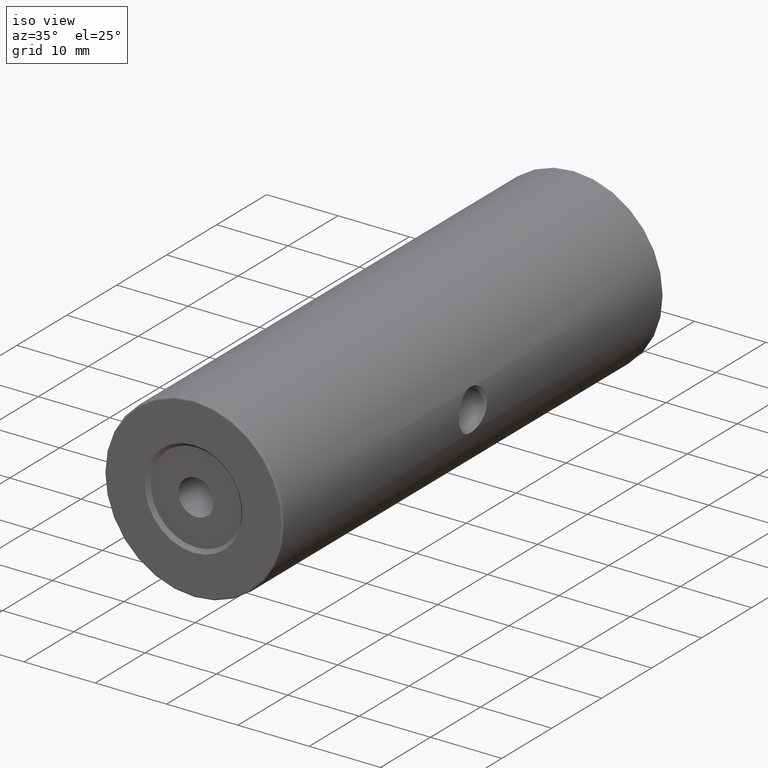
[diagram: clean part render]
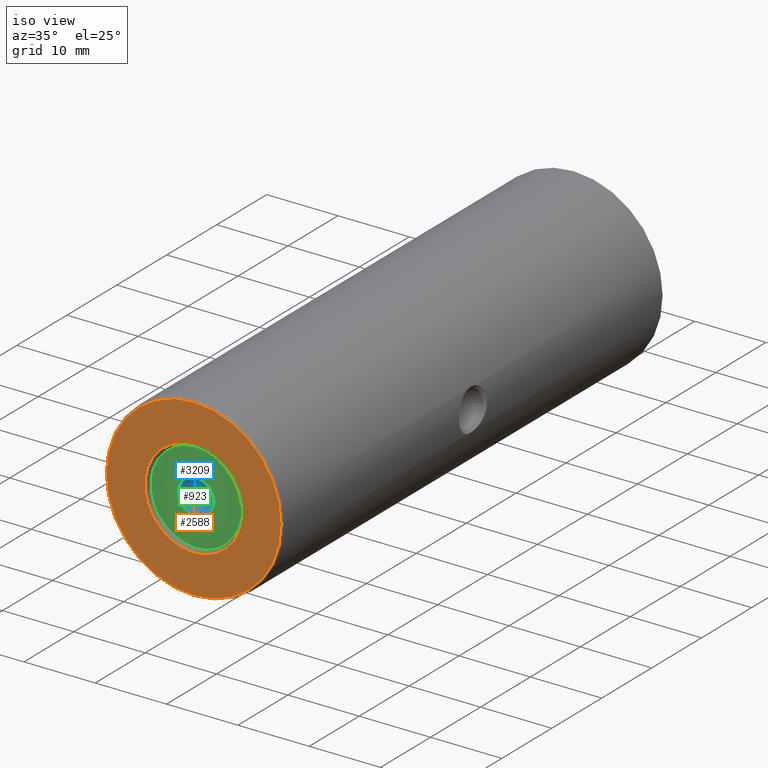
[diagram: same view with three faces highlighted in distinct colors, each labeled with its STEP entity id]
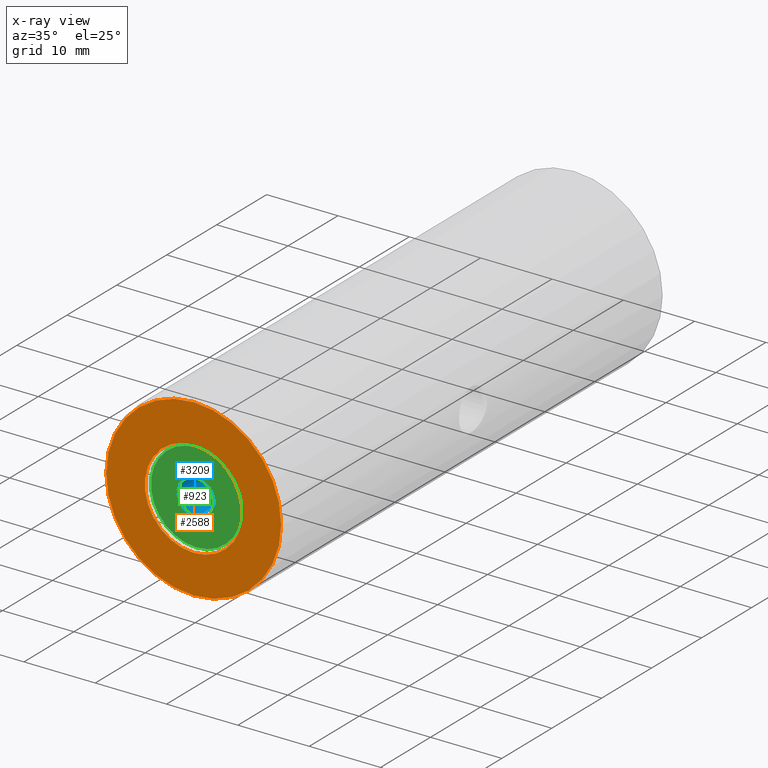
[diagram: x-ray of the same camera — body ghosted, the three highlighted faces saturated]
A machine part, iso view with three faces highlighted in distinct colors.
The next image is the same camera in x-ray (body ghosted, the three faces saturated) — at least one of them is partly hidden behind the body in this view.
Their STEP definitions:

[orange] entity #2588 — the highlighted planar face has unit normal (0, 1, 0).
#81 = DIRECTION ( 'NONE',  ( 0.0000000000000000000, 1.000000000000000000, 0.0000000000000000000 ) ) ;
#154 = VERTEX_POINT ( 'NONE', #2944 ) ;
#283 = CARTESIAN_POINT ( 'NONE',  ( -22.50520183104453409, -36.70174781523061114, 50.00000000000000000 ) ) ;
#340 = ORIENTED_EDGE ( 'NONE', *, *, #3274, .T. ) ;
#393 = CIRCLE ( 'NONE', #2350, 12.24999999999999645 ) ;
#616 = CIRCLE ( 'NONE', #1229, 6.850000000000002309 ) ;
#637 = DIRECTION ( 'NONE',  ( 0.0000000000000000000, 0.0000000000000000000, 1.000000000000000000 ) ) ;
#702 = CARTESIAN_POINT ( 'NONE',  ( -22.50520183104453409, -36.70174781523061114, 50.00000000000000000 ) ) ;
#759 = CARTESIAN_POINT ( 'NONE',  ( -22.50520183104453409, -36.70174781523061114, 37.75000000000000711 ) ) ;
#778 = CIRCLE ( 'NONE', #950, 6.850000000000002309 ) ;
#803 = DIRECTION ( 'NONE',  ( 0.0000000000000000000, -0.0000000000000000000, 1.000000000000000000 ) ) ;
#860 = EDGE_LOOP ( 'NONE', ( #1904, #3283 ) ) ;
#910 = VERTEX_POINT ( 'NONE', #3409 ) ;
#950 = AXIS2_PLACEMENT_3D ( 'NONE', #702, #2009, #1762 ) ;
#1119 = AXIS2_PLACEMENT_3D ( 'NONE', #283, #3226, #1143 ) ;
#1143 = DIRECTION ( 'NONE',  ( 0.0000000000000000000, 0.0000000000000000000, 1.000000000000000000 ) ) ;
#1176 = CARTESIAN_POINT ( 'NONE',  ( -22.50520183104453409, -36.70174781523061114, 50.00000000000000000 ) ) ;
#1229 = AXIS2_PLACEMENT_3D ( 'NONE', #1176, #2843, #637 ) ;
#1262 = VERTEX_POINT ( 'NONE', #3273 ) ;
#1363 = FACE_BOUND ( 'NONE', #3334, .T. ) ;
#1762 = DIRECTION ( 'NONE',  ( 0.0000000000000000000, 0.0000000000000000000, 1.000000000000000000 ) ) ;
#1862 = CARTESIAN_POINT ( 'NONE',  ( -22.50520183104453409, -36.70174781523061114, 50.00000000000000000 ) ) ;
#1881 = DIRECTION ( 'NONE',  ( 0.0000000000000000000, 0.0000000000000000000, 1.000000000000000000 ) ) ;
#1904 = ORIENTED_EDGE ( 'NONE', *, *, #2762, .T. ) ;
#2007 = VERTEX_POINT ( 'NONE', #759 ) ;
#2009 = DIRECTION ( 'NONE',  ( 0.0000000000000000000, 1.000000000000000000, 0.0000000000000000000 ) ) ;
#2146 = FACE_OUTER_BOUND ( 'NONE', #860, .T. ) ;
#2350 = AXIS2_PLACEMENT_3D ( 'NONE', #2684, #3186, #1881 ) ;
#2523 = CIRCLE ( 'NONE', #1119, 12.24999999999999645 ) ;
#2588 = ADVANCED_FACE ( 'NONE', ( #2146, #1363 ), #3207, .F. ) ;
#2630 = AXIS2_PLACEMENT_3D ( 'NONE', #1862, #81, #803 ) ;
#2684 = CARTESIAN_POINT ( 'NONE',  ( -22.50520183104453409, -36.70174781523061114, 50.00000000000000000 ) ) ;
#2694 = EDGE_CURVE ( 'NONE', #2007, #910, #393, .T. ) ;
#2762 = EDGE_CURVE ( 'NONE', #910, #2007, #2523, .T. ) ;
#2843 = DIRECTION ( 'NONE',  ( 0.0000000000000000000, 1.000000000000000000, 0.0000000000000000000 ) ) ;
#2944 = CARTESIAN_POINT ( 'NONE',  ( -22.50520183104453409, -36.70174781523061114, 56.85000000000000142 ) ) ;
#3186 = DIRECTION ( 'NONE',  ( -0.0000000000000000000, -1.000000000000000000, -0.0000000000000000000 ) ) ;
#3207 = PLANE ( 'NONE',  #2630 ) ;
#3226 = DIRECTION ( 'NONE',  ( -0.0000000000000000000, -1.000000000000000000, -0.0000000000000000000 ) ) ;
#3273 = CARTESIAN_POINT ( 'NONE',  ( -22.50520183104453409, -36.70174781523061114, 43.14999999999999858 ) ) ;
#3274 = EDGE_CURVE ( 'NONE', #154, #1262, #778, .T. ) ;
#3283 = ORIENTED_EDGE ( 'NONE', *, *, #2694, .T. ) ;
#3304 = EDGE_CURVE ( 'NONE', #1262, #154, #616, .T. ) ;
#3334 = EDGE_LOOP ( 'NONE', ( #3383, #340 ) ) ;
#3383 = ORIENTED_EDGE ( 'NONE', *, *, #3304, .T. ) ;
#3409 = CARTESIAN_POINT ( 'NONE',  ( -22.50520183104453409, -36.70174781523061114, 62.25000000000000000 ) ) ;

[blue] entity #3209 — the highlighted cylindrical surface (edge-blend (fillet) strip) has radius 2.5 mm, axis along (-0, -1, -0).
#70 = ORIENTED_EDGE ( 'NONE', *, *, #2231, .F. ) ;
#121 = DIRECTION ( 'NONE',  ( 0.0000000000000000000, 0.0000000000000000000, -1.000000000000000000 ) ) ;
#174 = VERTEX_POINT ( 'NONE', #2145 ) ;
#449 = EDGE_CURVE ( 'NONE', #3397, #893, #1559, .T. ) ;
#666 = DIRECTION ( 'NONE',  ( 0.0000000000000000000, 0.0000000000000000000, -1.000000000000000000 ) ) ;
#766 = CARTESIAN_POINT ( 'NONE',  ( -22.50520183104453409, -36.70174781523061114, 52.50000000000000000 ) ) ;
#782 = LINE ( 'NONE', #1631, #2773 ) ;
#893 = VERTEX_POINT ( 'NONE', #1533 ) ;
#947 = CIRCLE ( 'NONE', #2905, 2.499999999999995115 ) ;
#1071 = EDGE_CURVE ( 'NONE', #174, #2443, #947, .T. ) ;
#1344 = DIRECTION ( 'NONE',  ( -0.0000000000000000000, -1.000000000000000000, -0.0000000000000000000 ) ) ;
#1397 = VECTOR ( 'NONE', #3119, 1000.000000000000000 ) ;
#1438 = FACE_OUTER_BOUND ( 'NONE', #2044, .T. ) ;
#1459 = CARTESIAN_POINT ( 'NONE',  ( -22.50520183104453409, -36.20174781523061114, 52.50000000000000000 ) ) ;
#1462 = ORIENTED_EDGE ( 'NONE', *, *, #1071, .F. ) ;
#1533 = CARTESIAN_POINT ( 'NONE',  ( -22.50520183104453409, -36.20174781523061114, 47.50000000000000711 ) ) ;
#1559 = CIRCLE ( 'NONE', #2190, 2.499999999999995115 ) ;
#1631 = CARTESIAN_POINT ( 'NONE',  ( -22.50520183104453409, -36.70174781523061114, 47.50000000000000711 ) ) ;
#1919 = CARTESIAN_POINT ( 'NONE',  ( -22.50520183104453409, -25.20174781523061114, 47.50000000000000711 ) ) ;
#2041 = DIRECTION ( 'NONE',  ( -0.0000000000000000000, -1.000000000000000000, -0.0000000000000000000 ) ) ;
#2044 = EDGE_LOOP ( 'NONE', ( #1462, #2338, #3213, #70 ) ) ;
#2145 = CARTESIAN_POINT ( 'NONE',  ( -22.50520183104453409, -25.20174781523061114, 52.50000000000000000 ) ) ;
#2190 = AXIS2_PLACEMENT_3D ( 'NONE', #2546, #3346, #666 ) ;
#2231 = EDGE_CURVE ( 'NONE', #2443, #893, #782, .T. ) ;
#2338 = ORIENTED_EDGE ( 'NONE', *, *, #3413, .T. ) ;
#2381 = CARTESIAN_POINT ( 'NONE',  ( -22.50520183104453409, -25.20174781523061114, 50.00000000000000000 ) ) ;
#2419 = DIRECTION ( 'NONE',  ( 0.0000000000000000000, 0.0000000000000000000, -1.000000000000000000 ) ) ;
#2443 = VERTEX_POINT ( 'NONE', #1919 ) ;
#2516 = CARTESIAN_POINT ( 'NONE',  ( -22.50520183104453409, -36.70174781523061114, 50.00000000000000000 ) ) ;
#2546 = CARTESIAN_POINT ( 'NONE',  ( -22.50520183104453409, -36.20174781523061114, 50.00000000000000000 ) ) ;
#2552 = CYLINDRICAL_SURFACE ( 'NONE', #3189, 2.499999999999995115 ) ;
#2597 = LINE ( 'NONE', #766, #1397 ) ;
#2773 = VECTOR ( 'NONE', #2963, 1000.000000000000000 ) ;
#2905 = AXIS2_PLACEMENT_3D ( 'NONE', #2381, #1344, #2419 ) ;
#2963 = DIRECTION ( 'NONE',  ( -0.0000000000000000000, -1.000000000000000000, -0.0000000000000000000 ) ) ;
#3119 = DIRECTION ( 'NONE',  ( -0.0000000000000000000, -1.000000000000000000, -0.0000000000000000000 ) ) ;
#3189 = AXIS2_PLACEMENT_3D ( 'NONE', #2516, #2041, #121 ) ;
#3209 = ADVANCED_FACE ( 'NONE', ( #1438 ), #2552, .F. ) ;
#3213 = ORIENTED_EDGE ( 'NONE', *, *, #449, .T. ) ;
#3346 = DIRECTION ( 'NONE',  ( 0.0000000000000000000, -1.000000000000000000, 0.0000000000000000000 ) ) ;
#3397 = VERTEX_POINT ( 'NONE', #1459 ) ;
#3413 = EDGE_CURVE ( 'NONE', #174, #3397, #2597, .T. ) ;

[green] entity #923 — the highlighted planar face has unit normal (0, -1, 0).
#7 = FACE_BOUND ( 'NONE', #490, .T. ) ;
#211 = FACE_OUTER_BOUND ( 'NONE', #752, .T. ) ;
#281 = DIRECTION ( 'NONE',  ( 0.0000000000000000000, 0.0000000000000000000, 1.000000000000000000 ) ) ;
#442 = AXIS2_PLACEMENT_3D ( 'NONE', #1963, #1164, #644 ) ;
#449 = EDGE_CURVE ( 'NONE', #3397, #893, #1559, .T. ) ;
#490 = EDGE_LOOP ( 'NONE', ( #2220, #1726 ) ) ;
#644 = DIRECTION ( 'NONE',  ( 0.0000000000000000000, 0.0000000000000000000, 1.000000000000000000 ) ) ;
#666 = DIRECTION ( 'NONE',  ( 0.0000000000000000000, 0.0000000000000000000, -1.000000000000000000 ) ) ;
#752 = EDGE_LOOP ( 'NONE', ( #3094, #2911 ) ) ;
#762 = DIRECTION ( 'NONE',  ( 0.0000000000000000000, -1.000000000000000000, 0.0000000000000000000 ) ) ;
#820 = DIRECTION ( 'NONE',  ( 0.0000000000000000000, 0.0000000000000000000, -1.000000000000000000 ) ) ;
#890 = AXIS2_PLACEMENT_3D ( 'NONE', #1061, #762, #2144 ) ;
#893 = VERTEX_POINT ( 'NONE', #1533 ) ;
#923 = ADVANCED_FACE ( 'NONE', ( #7, #211 ), #1007, .T. ) ;
#973 = EDGE_CURVE ( 'NONE', #1244, #2389, #2465, .T. ) ;
#1007 = PLANE ( 'NONE',  #890 ) ;
#1061 = CARTESIAN_POINT ( 'NONE',  ( -22.50520183104453409, -36.20174781523061114, 50.00000000000000000 ) ) ;
#1164 = DIRECTION ( 'NONE',  ( -0.0000000000000000000, 1.000000000000000000, -0.0000000000000000000 ) ) ;
#1181 = EDGE_CURVE ( 'NONE', #2389, #1244, #1393, .T. ) ;
#1244 = VERTEX_POINT ( 'NONE', #1680 ) ;
#1306 = DIRECTION ( 'NONE',  ( -0.0000000000000000000, 1.000000000000000000, -0.0000000000000000000 ) ) ;
#1393 = CIRCLE ( 'NONE', #442, 6.350000000000001421 ) ;
#1459 = CARTESIAN_POINT ( 'NONE',  ( -22.50520183104453409, -36.20174781523061114, 52.50000000000000000 ) ) ;
#1533 = CARTESIAN_POINT ( 'NONE',  ( -22.50520183104453409, -36.20174781523061114, 47.50000000000000711 ) ) ;
#1559 = CIRCLE ( 'NONE', #2190, 2.499999999999995115 ) ;
#1649 = CARTESIAN_POINT ( 'NONE',  ( -22.50520183104453409, -36.20174781523061114, 50.00000000000000000 ) ) ;
#1680 = CARTESIAN_POINT ( 'NONE',  ( -22.50520183104453409, -36.20174781523061114, 56.35000000000000142 ) ) ;
#1688 = AXIS2_PLACEMENT_3D ( 'NONE', #1649, #2421, #820 ) ;
#1726 = ORIENTED_EDGE ( 'NONE', *, *, #449, .F. ) ;
#1963 = CARTESIAN_POINT ( 'NONE',  ( -22.50520183104453409, -36.20174781523061114, 50.00000000000000000 ) ) ;
#2144 = DIRECTION ( 'NONE',  ( 0.0000000000000000000, 0.0000000000000000000, 1.000000000000000000 ) ) ;
#2190 = AXIS2_PLACEMENT_3D ( 'NONE', #2546, #3346, #666 ) ;
#2220 = ORIENTED_EDGE ( 'NONE', *, *, #2330, .F. ) ;
#2330 = EDGE_CURVE ( 'NONE', #893, #3397, #2724, .T. ) ;
#2389 = VERTEX_POINT ( 'NONE', #3261 ) ;
#2421 = DIRECTION ( 'NONE',  ( 0.0000000000000000000, -1.000000000000000000, 0.0000000000000000000 ) ) ;
#2465 = CIRCLE ( 'NONE', #3024, 6.350000000000001421 ) ;
#2546 = CARTESIAN_POINT ( 'NONE',  ( -22.50520183104453409, -36.20174781523061114, 50.00000000000000000 ) ) ;
#2724 = CIRCLE ( 'NONE', #1688, 2.499999999999995115 ) ;
#2911 = ORIENTED_EDGE ( 'NONE', *, *, #973, .F. ) ;
#2942 = CARTESIAN_POINT ( 'NONE',  ( -22.50520183104453409, -36.20174781523061114, 50.00000000000000000 ) ) ;
#3024 = AXIS2_PLACEMENT_3D ( 'NONE', #2942, #1306, #281 ) ;
#3094 = ORIENTED_EDGE ( 'NONE', *, *, #1181, .F. ) ;
#3261 = CARTESIAN_POINT ( 'NONE',  ( -22.50520183104453409, -36.20174781523061114, 43.64999999999999858 ) ) ;
#3346 = DIRECTION ( 'NONE',  ( 0.0000000000000000000, -1.000000000000000000, 0.0000000000000000000 ) ) ;
#3397 = VERTEX_POINT ( 'NONE', #1459 ) ;